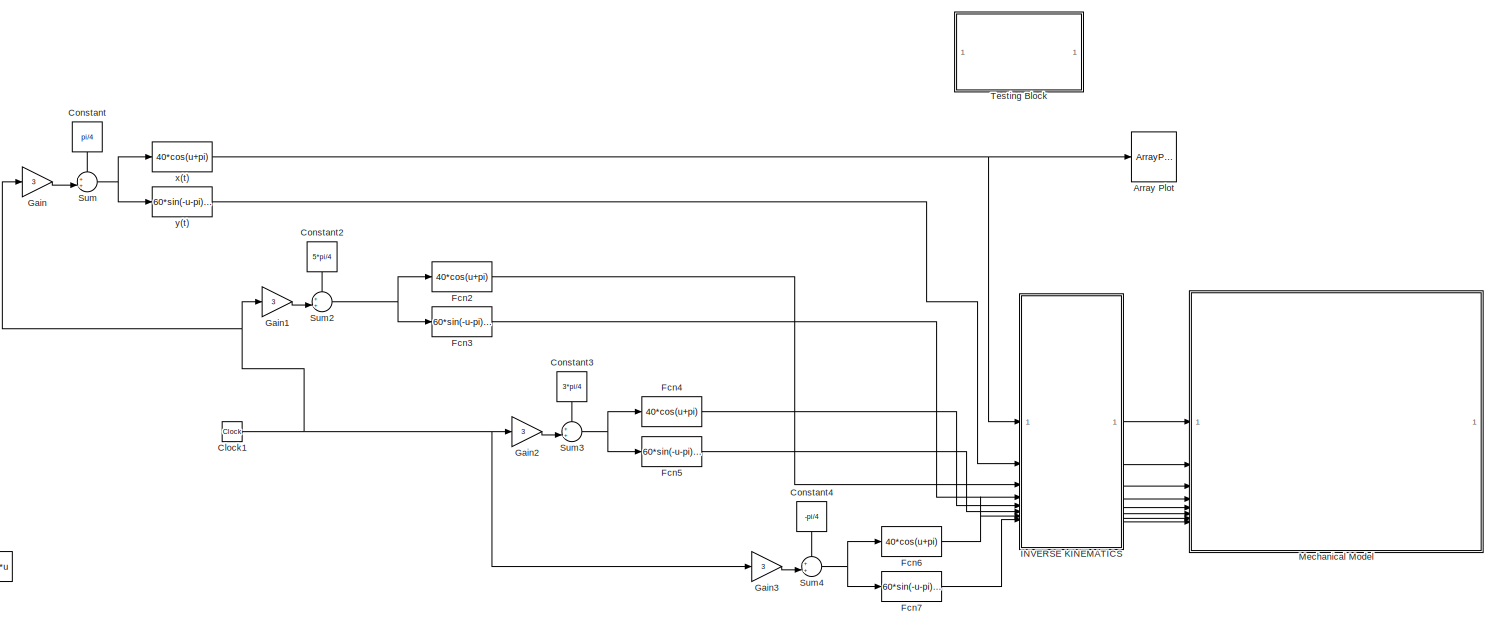
[diagram: root canvas - part 1/2, most of the canvas]
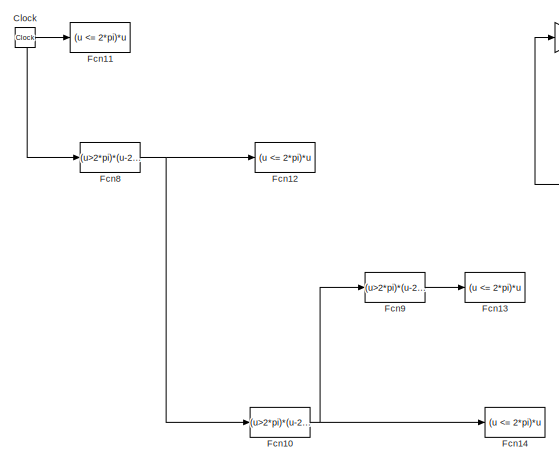
[diagram: root canvas - part 2/2, middle left region]
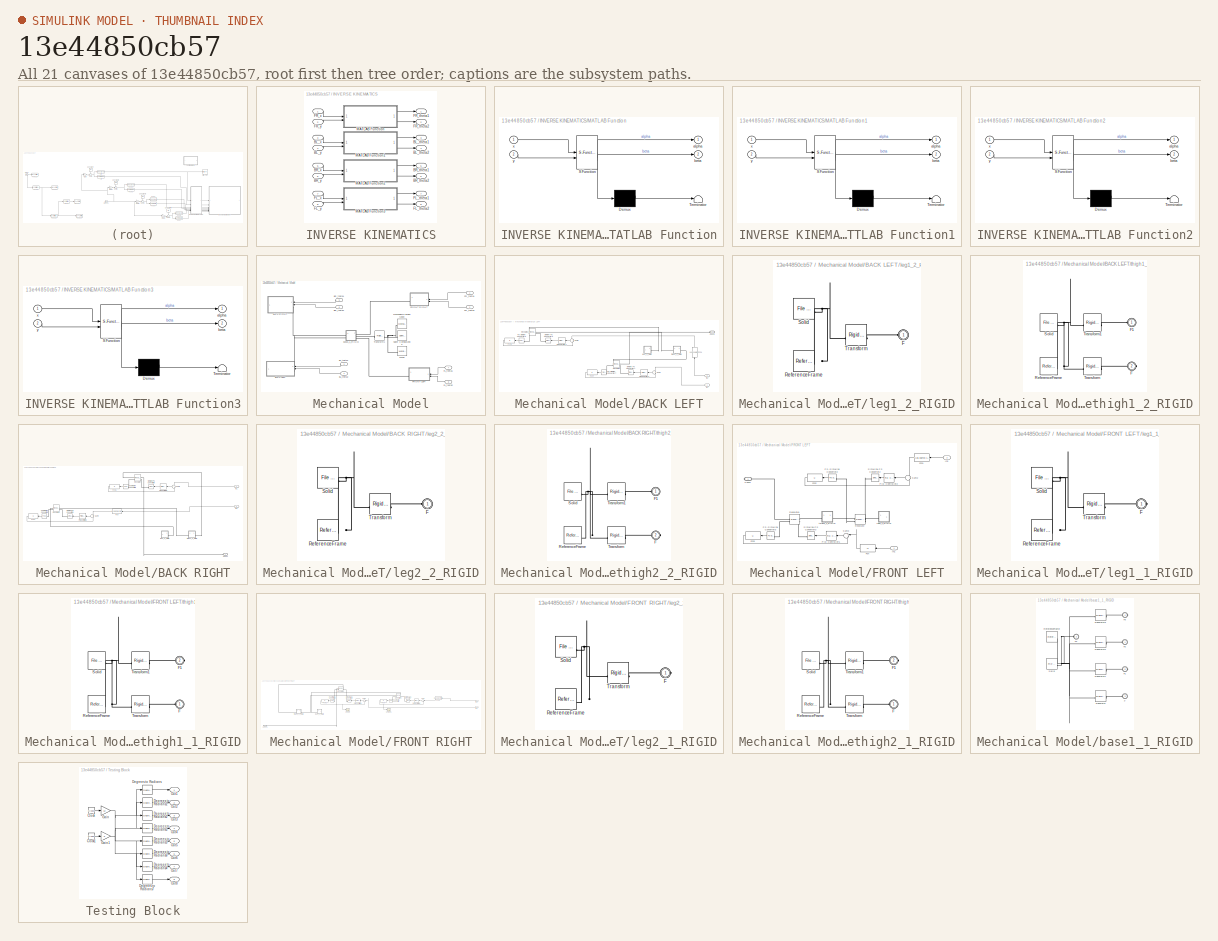
[diagram: thumbnail index - all 21 canvases of the model, root first then tree order]
MODEL slx_13e44850cb57
KIND model
CONFIG AbsTol = auto
CONFIG EnableMultiTasking = off
CONFIG FixedStep = auto
CONFIG MaxStep = auto
CONFIG MinStep = auto
CONFIG RelTol = 1e-3
CONFIG SampleTimeConstraint = Unconstrained
CONFIG SolverName = VariableStepAuto
CONFIG StartTime = 0.0
CONFIG StopTime = 10
WORKSPACE source: external: MATLAB File  (data not in archive)
BLOCK [ArrayPlot] Array Plot
  AxesScaling = Manual
  ChannelNames = [""]
  DefaultConfigurationName = dsp.scopes.ArrayPlotBlockSpecification
  GraphicalSettings = {"Style":{"BackgroundColor":[0.12941176470588237,0.12941176470588237,0.12941176470588237],"AxesColor":[0,0,0],"LabelsColor":[0.68627450980392157,0.68627450980392157,0.68627450980392157],"PreserveColors":false,"Visible":true,"LineStyle":["-"],"LineWidth":1.5,"BarWidth":0.9,"LineColor":[1,0.90980392156862744,0.39215686274509803],"LineFaceAlpha":1,"LineEdgeAlpha":1,"Marker":["o"],"FontSize":8.5},"Mea...<+19ch>
  MultipleDisplayCache = {"PlotAsMagnitudePhase":[false],"ShowGrid":[false],"ShowLegend":[false],"Title":[""],"XLabel":[""],"YLabel":["Amplitude"],"YLimits":["[-9.45414847161572,10.54585152838428]"]}
  ScopeFrameLocation = window
  ScopeSpecificationString = dsp.scopes.ArrayPlotBlockSpecification('CurrentConfiguration', extmgr.ConfigurationSet(extmgr.Configuration('Core','General UI',true),extmgr.Configuration('Core','Source UI',true),extmgr.Configuration('Sources','WiredSimulink',true),extmgr.Configuration('Visuals','Array Plot',true,'DisplayPropertyDefaults',struct('MinYLimReal','-10','MaxYLimReal','10','YLabelReal','Amplitude','MinYLimMag','0','Max...<+1371ch>
  ShowGrid = off
  WasSavedAsWebScope = on
  WindowPosition = [278.000000,154.000000,810.000000,455.000000,]
  YLimits = [-9.45414847161572 10.54585152838428]
BLOCK [Clock] Clock
  Commented = on
BLOCK [Clock] Clock1
BLOCK [Constant] Constant
  NameLocation = left
  Value = pi/4
BLOCK [Constant] Constant2
  NameLocation = left
  Value = 5*pi/4
BLOCK [Constant] Constant3
  NameLocation = left
  Value = 3*pi/4
BLOCK [Constant] Constant4
  NameLocation = left
  Value = -pi/4
BLOCK [Fcn] Fcn10
  Commented = on
  Expr = (u>2*pi)*(u-2*pi)
BLOCK [Fcn] Fcn11
  Commented = on
  Expr = (u <= 2*pi)*u
BLOCK [Fcn] Fcn12
  Commented = on
  Expr = (u <= 2*pi)*u
BLOCK [Fcn] Fcn13
  Commented = on
  Expr = (u <= 2*pi)*u
BLOCK [Fcn] Fcn14
  Commented = on
  Expr = (u <= 2*pi)*u
BLOCK [Fcn] Fcn2
  Expr = 40*cos(u+pi)
BLOCK [Fcn] Fcn3
  Expr = 60*sin(-u-pi)/2 - 180
BLOCK [Fcn] Fcn4
  Expr = 40*cos(u+pi)
BLOCK [Fcn] Fcn5
  Expr = 60*sin(-u-pi)/2 - 180
BLOCK [Fcn] Fcn6
  Expr = 40*cos(u+pi)
BLOCK [Fcn] Fcn7
  Expr = 60*sin(-u-pi)/2 - 180
BLOCK [Fcn] Fcn8
  Commented = on
  Expr = (u>2*pi)*(u-2*pi)
BLOCK [Fcn] Fcn9
  Commented = on
  Expr = (u>2*pi)*(u-2*pi)
BLOCK [Gain] Gain
  Gain = 3
BLOCK [Gain] Gain1
  Gain = 3
BLOCK [Gain] Gain2
  Gain = 3
BLOCK [Gain] Gain3
  Gain = 3
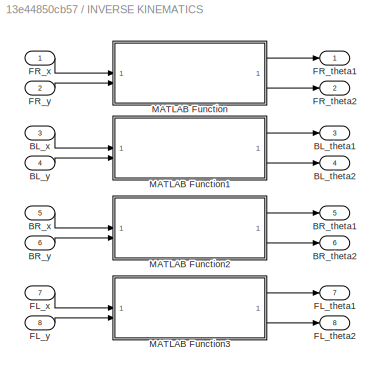
BLOCK [SubSystem] INVERSE KINEMATICS
BLOCK [Outport] INVERSE KINEMATICS/BL_theta1
  Port = 3
  VectorParamsAs1DForOutWhenUnconnected = off
BLOCK [Outport] INVERSE KINEMATICS/BL_theta2
  Port = 4
  VectorParamsAs1DForOutWhenUnconnected = off
BLOCK [Inport] INVERSE KINEMATICS/BL_x
  Port = 3
BLOCK [Inport] INVERSE KINEMATICS/BL_y
  Port = 4
BLOCK [Outport] INVERSE KINEMATICS/BR_theta1
  Port = 5
  VectorParamsAs1DForOutWhenUnconnected = off
BLOCK [Outport] INVERSE KINEMATICS/BR_theta2
  Port = 6
  VectorParamsAs1DForOutWhenUnconnected = off
BLOCK [Inport] INVERSE KINEMATICS/BR_x
  Port = 5
BLOCK [Inport] INVERSE KINEMATICS/BR_y
  Port = 6
BLOCK [Outport] INVERSE KINEMATICS/FL_theta1
  Port = 7
  VectorParamsAs1DForOutWhenUnconnected = off
BLOCK [Outport] INVERSE KINEMATICS/FL_theta2
  Port = 8
  VectorParamsAs1DForOutWhenUnconnected = off
BLOCK [Inport] INVERSE KINEMATICS/FL_x
  Port = 7
BLOCK [Inport] INVERSE KINEMATICS/FL_y
  Port = 8
BLOCK [Outport] INVERSE KINEMATICS/FR_theta1
  VectorParamsAs1DForOutWhenUnconnected = off
BLOCK [Outport] INVERSE KINEMATICS/FR_theta2
  Port = 2
  VectorParamsAs1DForOutWhenUnconnected = off
BLOCK [Inport] INVERSE KINEMATICS/FR_x
BLOCK [Inport] INVERSE KINEMATICS/FR_y
  Port = 2
BLOCK [SubSystem] INVERSE KINEMATICS/MATLAB Function
  ErrorFcn = Stateflow.Translate.translate
  PermitHierarchicalResolution = ExplicitOnly
  SFBlockType = MATLAB Function
  TreatAsAtomicUnit = on
BLOCK [Demux] INVERSE KINEMATICS/MATLAB Function/ Demux 
  Outputs = 1
BLOCK [S-Function] INVERSE KINEMATICS/MATLAB Function/ SFunction 
  EnableBusSupport = off
  FunctionName = sf_sfun
  PortCounts = [2 3]
  SFcnIsStateOwnerBlock = off
  SFunctionDeploymentMode = off
  Tag = Stateflow S-Function 2
BLOCK [Terminator] INVERSE KINEMATICS/MATLAB Function/ Terminator 
BLOCK [Outport] INVERSE KINEMATICS/MATLAB Function/alpha
  VectorParamsAs1DForOutWhenUnconnected = off
BLOCK [Outport] INVERSE KINEMATICS/MATLAB Function/beta
  Port = 2
  VectorParamsAs1DForOutWhenUnconnected = off
BLOCK [Inport] INVERSE KINEMATICS/MATLAB Function/x
BLOCK [Inport] INVERSE KINEMATICS/MATLAB Function/y
  Port = 2
BLOCK [SubSystem] INVERSE KINEMATICS/MATLAB Function1
  ErrorFcn = Stateflow.Translate.translate
  PermitHierarchicalResolution = ExplicitOnly
  SFBlockType = MATLAB Function
  TreatAsAtomicUnit = on
BLOCK [Demux] INVERSE KINEMATICS/MATLAB Function1/ Demux 
  Outputs = 1
BLOCK [S-Function] INVERSE KINEMATICS/MATLAB Function1/ SFunction 
  EnableBusSupport = off
  FunctionName = sf_sfun
  PortCounts = [2 3]
  SFcnIsStateOwnerBlock = off
  SFunctionDeploymentMode = off
  Tag = Stateflow S-Function 1
BLOCK [Terminator] INVERSE KINEMATICS/MATLAB Function1/ Terminator 
BLOCK [Outport] INVERSE KINEMATICS/MATLAB Function1/alpha
  VectorParamsAs1DForOutWhenUnconnected = off
BLOCK [Outport] INVERSE KINEMATICS/MATLAB Function1/beta
  Port = 2
  VectorParamsAs1DForOutWhenUnconnected = off
BLOCK [Inport] INVERSE KINEMATICS/MATLAB Function1/x
BLOCK [Inport] INVERSE KINEMATICS/MATLAB Function1/y
  Port = 2
BLOCK [SubSystem] INVERSE KINEMATICS/MATLAB Function2
  ErrorFcn = Stateflow.Translate.translate
  PermitHierarchicalResolution = ExplicitOnly
  SFBlockType = MATLAB Function
  TreatAsAtomicUnit = on
BLOCK [Demux] INVERSE KINEMATICS/MATLAB Function2/ Demux 
  Outputs = 1
BLOCK [S-Function] INVERSE KINEMATICS/MATLAB Function2/ SFunction 
  EnableBusSupport = off
  FunctionName = sf_sfun
  PortCounts = [2 3]
  SFcnIsStateOwnerBlock = off
  SFunctionDeploymentMode = off
  Tag = Stateflow S-Function 3
BLOCK [Terminator] INVERSE KINEMATICS/MATLAB Function2/ Terminator 
BLOCK [Outport] INVERSE KINEMATICS/MATLAB Function2/alpha
  VectorParamsAs1DForOutWhenUnconnected = off
BLOCK [Outport] INVERSE KINEMATICS/MATLAB Function2/beta
  Port = 2
  VectorParamsAs1DForOutWhenUnconnected = off
BLOCK [Inport] INVERSE KINEMATICS/MATLAB Function2/x
BLOCK [Inport] INVERSE KINEMATICS/MATLAB Function2/y
  Port = 2
BLOCK [SubSystem] INVERSE KINEMATICS/MATLAB Function3
  ErrorFcn = Stateflow.Translate.translate
  PermitHierarchicalResolution = ExplicitOnly
  SFBlockType = MATLAB Function
  TreatAsAtomicUnit = on
BLOCK [Demux] INVERSE KINEMATICS/MATLAB Function3/ Demux 
  Outputs = 1
BLOCK [S-Function] INVERSE KINEMATICS/MATLAB Function3/ SFunction 
  EnableBusSupport = off
  FunctionName = sf_sfun
  PortCounts = [2 3]
  SFcnIsStateOwnerBlock = off
  SFunctionDeploymentMode = off
  Tag = Stateflow S-Function 4
BLOCK [Terminator] INVERSE KINEMATICS/MATLAB Function3/ Terminator 
BLOCK [Outport] INVERSE KINEMATICS/MATLAB Function3/alpha
  VectorParamsAs1DForOutWhenUnconnected = off
BLOCK [Outport] INVERSE KINEMATICS/MATLAB Function3/beta
  Port = 2
  VectorParamsAs1DForOutWhenUnconnected = off
BLOCK [Inport] INVERSE KINEMATICS/MATLAB Function3/x
BLOCK [Inport] INVERSE KINEMATICS/MATLAB Function3/y
  Port = 2
BLOCK [SubSystem] Mechanical Model
BLOCK [SubSystem] Mechanical Model/BACK LEFT
  NameLocation = top
BLOCK [PMIOPort] Mechanical Model/BACK LEFT/Conn1
  Side = Left
BLOCK [Fcn] Mechanical Model/BACK LEFT/Fcn1
  Expr = u-28.338*pi/180
  NameLocation = left
BLOCK [Fcn] Mechanical Model/BACK LEFT/Fcn6
  Expr = u
  NameLocation = top
BLOCK [Fcn] Mechanical Model/BACK LEFT/Fcn7
  Expr = u
  NameLocation = top
BLOCK [Inport] Mechanical Model/BACK LEFT/In1
BLOCK [Inport] Mechanical Model/BACK LEFT/In2 
  Port = 2
BLOCK [Reference] Mechanical Model/BACK LEFT/PID Controller1  REF=slpidlib/PID Controller
  NameLocation = top
  SourceBlock = slpidlib/PID Controller
  SourceType = PID 1dof
BLOCK [Reference] Mechanical Model/BACK LEFT/PID Controller2  REF=slpidlib/PID Controller
  NameLocation = top
  SourceBlock = slpidlib/PID Controller
  SourceType = PID 1dof
BLOCK [Reference] Mechanical Model/BACK LEFT/PS-Simulink Converter6  REF=nesl_utility/PS-Simulink
Converter
  NameLocation = top
  SourceBlock = nesl_utility/PS-Simulink\nConverter
  SourceType = PS-Simulink\nConverter
BLOCK [Reference] Mechanical Model/BACK LEFT/PS-Simulink Converter7  REF=nesl_utility/PS-Simulink
Converter
  NameLocation = top
  SourceBlock = nesl_utility/PS-Simulink\nConverter
  SourceType = PS-Simulink\nConverter
BLOCK [Reference] Mechanical Model/BACK LEFT/Revolute2  REF=sm_lib/Joints/Revolute Joint
  NameLocation = top
  SourceBlock = sm_lib/Joints/Revolute Joint
  SourceType = Revolute Joint
BLOCK [Reference] Mechanical Model/BACK LEFT/Revolute3  REF=sm_lib/Joints/Revolute Joint
  NameLocation = top
  SourceBlock = sm_lib/Joints/Revolute Joint
  SourceType = Revolute Joint
BLOCK [Reference] Mechanical Model/BACK LEFT/Simulink-PS Converter6  REF=nesl_utility/Simulink-PS
Converter
  NameLocation = top
  SourceBlock = nesl_utility/Simulink-PS\nConverter
  SourceType = Simulink-PS\nConverter
BLOCK [Reference] Mechanical Model/BACK LEFT/Simulink-PS Converter7  REF=nesl_utility/Simulink-PS
Converter
  NameLocation = top
  SourceBlock = nesl_utility/Simulink-PS\nConverter
  SourceType = Simulink-PS\nConverter
BLOCK [Sum] Mechanical Model/BACK LEFT/Sum6
  Inputs = +-
  NameLocation = top
BLOCK [Sum] Mechanical Model/BACK LEFT/Sum7
  Inputs = +-
  NameLocation = top
BLOCK [SubSystem] Mechanical Model/BACK LEFT/leg1_2_RIGID
  NameLocation = top
BLOCK [PMIOPort] Mechanical Model/BACK LEFT/leg1_2_RIGID/F
  Side = Left
BLOCK [Reference] Mechanical Model/BACK LEFT/leg1_2_RIGID/ReferenceFrame  REF=sm_lib/Frames and
Transforms/Reference
Frame
  SourceBlock = sm_lib/Frames and\nTransforms/Reference\nFrame
  SourceType = Reference\nFrame
BLOCK [Reference] Mechanical Model/BACK LEFT/leg1_2_RIGID/Solid  REF=sm_lib/Body Elements/File Solid
  SourceBlock = sm_lib/Body Elements/File Solid
  SourceType = File Solid
BLOCK [Reference] Mechanical Model/BACK LEFT/leg1_2_RIGID/Transform  REF=sm_lib/Frames and
Transforms/Rigid
Transform
  SourceBlock = sm_lib/Frames and\nTransforms/Rigid\nTransform
  SourceType = Rigid\nTransform
BLOCK [SubSystem] Mechanical Model/BACK LEFT/thigh1_2_RIGID
  NameLocation = top
BLOCK [PMIOPort] Mechanical Model/BACK LEFT/thigh1_2_RIGID/F
  Port = 2
  Side = Right
BLOCK [PMIOPort] Mechanical Model/BACK LEFT/thigh1_2_RIGID/F1
  Side = Left
BLOCK [Reference] Mechanical Model/BACK LEFT/thigh1_2_RIGID/ReferenceFrame  REF=sm_lib/Frames and
Transforms/Reference
Frame
  SourceBlock = sm_lib/Frames and\nTransforms/Reference\nFrame
  SourceType = Reference\nFrame
BLOCK [Reference] Mechanical Model/BACK LEFT/thigh1_2_RIGID/Solid  REF=sm_lib/Body Elements/File Solid
  SourceBlock = sm_lib/Body Elements/File Solid
  SourceType = File Solid
BLOCK [Reference] Mechanical Model/BACK LEFT/thigh1_2_RIGID/Transform  REF=sm_lib/Frames and
Transforms/Rigid
Transform
  SourceBlock = sm_lib/Frames and\nTransforms/Rigid\nTransform
  SourceType = Rigid\nTransform
BLOCK [Reference] Mechanical Model/BACK LEFT/thigh1_2_RIGID/Transform1  REF=sm_lib/Frames and
Transforms/Rigid
Transform
  SourceBlock = sm_lib/Frames and\nTransforms/Rigid\nTransform
  SourceType = Rigid\nTransform
BLOCK [SubSystem] Mechanical Model/BACK RIGHT
  NameLocation = top
BLOCK [PMIOPort] Mechanical Model/BACK RIGHT/Conn1
  Side = Left
BLOCK [Fcn] Mechanical Model/BACK RIGHT/Fcn
  Expr = -u+28.338*pi/180
BLOCK [Fcn] Mechanical Model/BACK RIGHT/Fcn4
  Expr = u
  NameLocation = top
BLOCK [Fcn] Mechanical Model/BACK RIGHT/Fcn5
  Expr = u
  NameLocation = top
BLOCK [Inport] Mechanical Model/BACK RIGHT/In1
BLOCK [Inport] Mechanical Model/BACK RIGHT/In2
  Port = 2
BLOCK [Reference] Mechanical Model/BACK RIGHT/PID Controller1  REF=slpidlib/PID Controller
  NameLocation = top
  SourceBlock = slpidlib/PID Controller
  SourceType = PID 1dof
BLOCK [Reference] Mechanical Model/BACK RIGHT/PID Controller2  REF=slpidlib/PID Controller
  NameLocation = top
  SourceBlock = slpidlib/PID Controller
  SourceType = PID 1dof
BLOCK [Reference] Mechanical Model/BACK RIGHT/PS-Simulink Converter4  REF=nesl_utility/PS-Simulink
Converter
  NameLocation = top
  SourceBlock = nesl_utility/PS-Simulink\nConverter
  SourceType = PS-Simulink\nConverter
BLOCK [Reference] Mechanical Model/BACK RIGHT/PS-Simulink Converter5  REF=nesl_utility/PS-Simulink
Converter
  NameLocation = top
  SourceBlock = nesl_utility/PS-Simulink\nConverter
  SourceType = PS-Simulink\nConverter
BLOCK [Reference] Mechanical Model/BACK RIGHT/Revolute6  REF=sm_lib/Joints/Revolute Joint
  NameLocation = top
  SourceBlock = sm_lib/Joints/Revolute Joint
  SourceType = Revolute Joint
BLOCK [Reference] Mechanical Model/BACK RIGHT/Revolute7  REF=sm_lib/Joints/Revolute Joint
  NameLocation = top
  SourceBlock = sm_lib/Joints/Revolute Joint
  SourceType = Revolute Joint
BLOCK [Reference] Mechanical Model/BACK RIGHT/Simulink-PS Converter4  REF=nesl_utility/Simulink-PS
Converter
  NameLocation = top
  SourceBlock = nesl_utility/Simulink-PS\nConverter
  SourceType = Simulink-PS\nConverter
BLOCK [Reference] Mechanical Model/BACK RIGHT/Simulink-PS Converter5  REF=nesl_utility/Simulink-PS
Converter
  NameLocation = top
  SourceBlock = nesl_utility/Simulink-PS\nConverter
  SourceType = Simulink-PS\nConverter
BLOCK [Sum] Mechanical Model/BACK RIGHT/Sum4
  Inputs = +-
  NameLocation = top
BLOCK [Sum] Mechanical Model/BACK RIGHT/Sum5
  Inputs = +-
  NameLocation = top
BLOCK [SubSystem] Mechanical Model/BACK RIGHT/leg2_2_RIGID
  NameLocation = top
BLOCK [PMIOPort] Mechanical Model/BACK RIGHT/leg2_2_RIGID/F
  Side = Left
BLOCK [Reference] Mechanical Model/BACK RIGHT/leg2_2_RIGID/ReferenceFrame  REF=sm_lib/Frames and
Transforms/Reference
Frame
  SourceBlock = sm_lib/Frames and\nTransforms/Reference\nFrame
  SourceType = Reference\nFrame
BLOCK [Reference] Mechanical Model/BACK RIGHT/leg2_2_RIGID/Solid  REF=sm_lib/Body Elements/File Solid
  SourceBlock = sm_lib/Body Elements/File Solid
  SourceType = File Solid
BLOCK [Reference] Mechanical Model/BACK RIGHT/leg2_2_RIGID/Transform  REF=sm_lib/Frames and
Transforms/Rigid
Transform
  SourceBlock = sm_lib/Frames and\nTransforms/Rigid\nTransform
  SourceType = Rigid\nTransform
BLOCK [SubSystem] Mechanical Model/BACK RIGHT/thigh2_2_RIGID
  NameLocation = top
BLOCK [PMIOPort] Mechanical Model/BACK RIGHT/thigh2_2_RIGID/F
  Port = 2
  Side = Right
BLOCK [PMIOPort] Mechanical Model/BACK RIGHT/thigh2_2_RIGID/F1
  Side = Left
BLOCK [Reference] Mechanical Model/BACK RIGHT/thigh2_2_RIGID/ReferenceFrame  REF=sm_lib/Frames and
Transforms/Reference
Frame
  SourceBlock = sm_lib/Frames and\nTransforms/Reference\nFrame
  SourceType = Reference\nFrame
BLOCK [Reference] Mechanical Model/BACK RIGHT/thigh2_2_RIGID/Solid  REF=sm_lib/Body Elements/File Solid
  SourceBlock = sm_lib/Body Elements/File Solid
  SourceType = File Solid
BLOCK [Reference] Mechanical Model/BACK RIGHT/thigh2_2_RIGID/Transform  REF=sm_lib/Frames and
Transforms/Rigid
Transform
  SourceBlock = sm_lib/Frames and\nTransforms/Rigid\nTransform
  SourceType = Rigid\nTransform
BLOCK [Reference] Mechanical Model/BACK RIGHT/thigh2_2_RIGID/Transform1  REF=sm_lib/Frames and
Transforms/Rigid
Transform
  SourceBlock = sm_lib/Frames and\nTransforms/Rigid\nTransform
  SourceType = Rigid\nTransform
BLOCK [Inport] Mechanical Model/BL_theta1
  NameLocation = top
  Port = 3
BLOCK [Inport] Mechanical Model/BL_theta2
  NameLocation = top
  Port = 4
BLOCK [Inport] Mechanical Model/BR_theta1
  NameLocation = top
  Port = 5
BLOCK [Inport] Mechanical Model/BR_theta2
  NameLocation = top
  Port = 6
BLOCK [Inport] Mechanical Model/FL_theta1
  NameLocation = top
  Port = 7
BLOCK [Inport] Mechanical Model/FL_theta2
  NameLocation = top
  Port = 8
BLOCK [SubSystem] Mechanical Model/FRONT LEFT
  NameLocation = top
BLOCK [PMIOPort] Mechanical Model/FRONT LEFT/Conn1
  Side = Right
BLOCK [Fcn] Mechanical Model/FRONT LEFT/Fcn
  Expr = -u
BLOCK [Fcn] Mechanical Model/FRONT LEFT/Fcn1
  Expr = u-28.338*pi/180
BLOCK [Fcn] Mechanical Model/FRONT LEFT/Fcn2
  Expr = u
  NameLocation = top
BLOCK [Fcn] Mechanical Model/FRONT LEFT/Fcn3
  Expr = u
  NameLocation = top
BLOCK [Inport] Mechanical Model/FRONT LEFT/In1 
BLOCK [Inport] Mechanical Model/FRONT LEFT/In2
  Port = 2
BLOCK [Reference] Mechanical Model/FRONT LEFT/PID Controller1  REF=slpidlib/PID Controller
  NameLocation = top
  SourceBlock = slpidlib/PID Controller
  SourceType = PID 1dof
BLOCK [Reference] Mechanical Model/FRONT LEFT/PID Controller2  REF=slpidlib/PID Controller
  NameLocation = top
  SourceBlock = slpidlib/PID Controller
  SourceType = PID 1dof
BLOCK [Reference] Mechanical Model/FRONT LEFT/PS-Simulink Converter2  REF=nesl_utility/PS-Simulink
Converter
  NameLocation = top
  SourceBlock = nesl_utility/PS-Simulink\nConverter
  SourceType = PS-Simulink\nConverter
BLOCK [Reference] Mechanical Model/FRONT LEFT/PS-Simulink Converter3  REF=nesl_utility/PS-Simulink
Converter
  NameLocation = top
  SourceBlock = nesl_utility/PS-Simulink\nConverter
  SourceType = PS-Simulink\nConverter
BLOCK [Reference] Mechanical Model/FRONT LEFT/Revolute  REF=sm_lib/Joints/Revolute Joint
  NameLocation = top
  SourceBlock = sm_lib/Joints/Revolute Joint
  SourceType = Revolute Joint
BLOCK [Reference] Mechanical Model/FRONT LEFT/Revolute1  REF=sm_lib/Joints/Revolute Joint
  NameLocation = top
  SourceBlock = sm_lib/Joints/Revolute Joint
  SourceType = Revolute Joint
BLOCK [Reference] Mechanical Model/FRONT LEFT/Simulink-PS Converter2  REF=nesl_utility/Simulink-PS
Converter
  NameLocation = top
  SourceBlock = nesl_utility/Simulink-PS\nConverter
  SourceType = Simulink-PS\nConverter
BLOCK [Reference] Mechanical Model/FRONT LEFT/Simulink-PS Converter3  REF=nesl_utility/Simulink-PS
Converter
  NameLocation = top
  SourceBlock = nesl_utility/Simulink-PS\nConverter
  SourceType = Simulink-PS\nConverter
BLOCK [Sum] Mechanical Model/FRONT LEFT/Sum2
  Inputs = +-
  NameLocation = top
BLOCK [Sum] Mechanical Model/FRONT LEFT/Sum3
  Inputs = +-
  NameLocation = top
BLOCK [SubSystem] Mechanical Model/FRONT LEFT/leg1_1_RIGID
  NameLocation = top
BLOCK [PMIOPort] Mechanical Model/FRONT LEFT/leg1_1_RIGID/F
  Side = Right
BLOCK [Reference] Mechanical Model/FRONT LEFT/leg1_1_RIGID/ReferenceFrame  REF=sm_lib/Frames and
Transforms/Reference
Frame
  SourceBlock = sm_lib/Frames and\nTransforms/Reference\nFrame
  SourceType = Reference\nFrame
BLOCK [Reference] Mechanical Model/FRONT LEFT/leg1_1_RIGID/Solid  REF=sm_lib/Body Elements/File Solid
  SourceBlock = sm_lib/Body Elements/File Solid
  SourceType = File Solid
BLOCK [Reference] Mechanical Model/FRONT LEFT/leg1_1_RIGID/Transform  REF=sm_lib/Frames and
Transforms/Rigid
Transform
  SourceBlock = sm_lib/Frames and\nTransforms/Rigid\nTransform
  SourceType = Rigid\nTransform
BLOCK [SubSystem] Mechanical Model/FRONT LEFT/thigh1_1_RIGID
  NameLocation = top
BLOCK [PMIOPort] Mechanical Model/FRONT LEFT/thigh1_1_RIGID/F
  Side = Left
BLOCK [PMIOPort] Mechanical Model/FRONT LEFT/thigh1_1_RIGID/F1
  Port = 2
  Side = Right
BLOCK [Reference] Mechanical Model/FRONT LEFT/thigh1_1_RIGID/ReferenceFrame  REF=sm_lib/Frames and
Transforms/Reference
Frame
  SourceBlock = sm_lib/Frames and\nTransforms/Reference\nFrame
  SourceType = Reference\nFrame
BLOCK [Reference] Mechanical Model/FRONT LEFT/thigh1_1_RIGID/Solid  REF=sm_lib/Body Elements/File Solid
  SourceBlock = sm_lib/Body Elements/File Solid
  SourceType = File Solid
BLOCK [Reference] Mechanical Model/FRONT LEFT/thigh1_1_RIGID/Transform  REF=sm_lib/Frames and
Transforms/Rigid
Transform
  SourceBlock = sm_lib/Frames and\nTransforms/Rigid\nTransform
  SourceType = Rigid\nTransform
BLOCK [Reference] Mechanical Model/FRONT LEFT/thigh1_1_RIGID/Transform1  REF=sm_lib/Frames and
Transforms/Rigid
Transform
  SourceBlock = sm_lib/Frames and\nTransforms/Rigid\nTransform
  SourceType = Rigid\nTransform
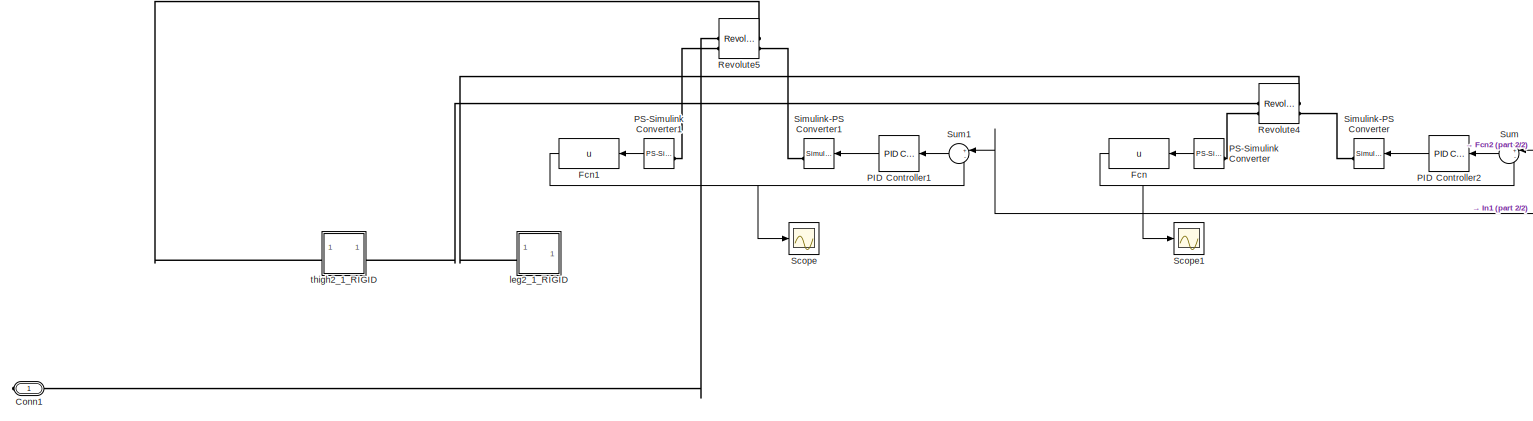
[diagram: Mechanical Model/FRONT RIGHT - part 1/2, most of the canvas]
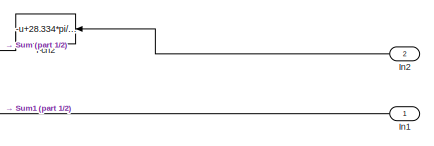
[diagram: Mechanical Model/FRONT RIGHT - part 2/2, middle right region]
BLOCK [SubSystem] Mechanical Model/FRONT RIGHT
  NameLocation = top
BLOCK [PMIOPort] Mechanical Model/FRONT RIGHT/Conn1
  Side = Right
BLOCK [Fcn] Mechanical Model/FRONT RIGHT/Fcn
  Expr = u
  NameLocation = top
BLOCK [Fcn] Mechanical Model/FRONT RIGHT/Fcn1
  Expr = u
  NameLocation = top
BLOCK [Fcn] Mechanical Model/FRONT RIGHT/Fcn2
  Expr = -u+28.334*pi/180
BLOCK [Inport] Mechanical Model/FRONT RIGHT/In1
BLOCK [Inport] Mechanical Model/FRONT RIGHT/In2 
  Port = 2
BLOCK [Reference] Mechanical Model/FRONT RIGHT/PID Controller1  REF=slpidlib/PID Controller
  NameLocation = top
  SourceBlock = slpidlib/PID Controller
  SourceType = PID 1dof
BLOCK [Reference] Mechanical Model/FRONT RIGHT/PID Controller2  REF=slpidlib/PID Controller
  NameLocation = top
  SourceBlock = slpidlib/PID Controller
  SourceType = PID 1dof
BLOCK [Reference] Mechanical Model/FRONT RIGHT/PS-Simulink Converter  REF=nesl_utility/PS-Simulink
Converter
  NameLocation = top
  SourceBlock = nesl_utility/PS-Simulink\nConverter
  SourceType = PS-Simulink\nConverter
BLOCK [Reference] Mechanical Model/FRONT RIGHT/PS-Simulink Converter1  REF=nesl_utility/PS-Simulink
Converter
  NameLocation = top
  SourceBlock = nesl_utility/PS-Simulink\nConverter
  SourceType = PS-Simulink\nConverter
BLOCK [Reference] Mechanical Model/FRONT RIGHT/Revolute4  REF=sm_lib/Joints/Revolute Joint
  NameLocation = top
  SourceBlock = sm_lib/Joints/Revolute Joint
  SourceType = Revolute Joint
BLOCK [Reference] Mechanical Model/FRONT RIGHT/Revolute5  REF=sm_lib/Joints/Revolute Joint
  NameLocation = top
  SourceBlock = sm_lib/Joints/Revolute Joint
  SourceType = Revolute Joint
BLOCK [Scope] Mechanical Model/FRONT RIGHT/Scope
  ActiveDisplayYMaximum = 0.15571
  ActiveDisplayYMinimum = -0.53801
  Floating = off
  GraphicalSettings = {"GraphicalSettings":{"LegacySettings":true,"Style":{"AxesScalingProperties":{"ScaleAxesLimitsAtStop":false},"Style":{"AxesColor":"[0 0 0]","ChannelNames":[""],"ColorOrder":"[1 1 0.0666666666666667;0.0745098039215686 0.623529411764706 1;1 0.411764705882353 0.16078431372549;0.392156862745098 0.831372549019608 0.0745098039215686;0.717647058823529 0.274509803921569 1;0.0588235294117647 1 1;1 0.074509...<+399ch>
  MultipleDisplayCache = [{"MaxYLimMag":0.53801,"MaxYLimReal":0.15571,"MinYLimMag":0,"MinYLimReal":-0.53801,"PlotAsMagnitudePhase":false,"ShowGrid":true,"ShowLegend":false,"Title":"%<SignalLabel>","YLabel":""}]
  NumInputPorts = 1
  WasSavedAsWebScope = on
  WindowPosition = [114 22 580 400]
BLOCK [Scope] Mechanical Model/FRONT RIGHT/Scope1
  ActiveDisplayYMaximum = 2.02904
  ActiveDisplayYMinimum = -0.74542
  DataLoggingVariableName = ScopeData1
  Floating = off
  GraphicalSettings = {"GraphicalSettings":{"LegacySettings":true,"Style":{"AxesScalingProperties":{"ScaleAxesLimitsAtStop":false},"Style":{"AxesColor":"[0 0 0]","ChannelNames":[""],"ColorOrder":"[1 1 0.0666666666666667;0.0745098039215686 0.623529411764706 1;1 0.411764705882353 0.16078431372549;0.392156862745098 0.831372549019608 0.0745098039215686;0.717647058823529 0.274509803921569 1;0.0588235294117647 1 1;1 0.074509...<+399ch>
  MultipleDisplayCache = [{"MaxYLimMag":2.02904,"MaxYLimReal":2.02904,"MinYLimMag":0,"MinYLimReal":-0.74542,"PlotAsMagnitudePhase":false,"ShowGrid":true,"ShowLegend":false,"Title":"%<SignalLabel>","YLabel":""}]
  NumInputPorts = 1
  WasSavedAsWebScope = on
  WindowPosition = [109 17 590 390]
BLOCK [Reference] Mechanical Model/FRONT RIGHT/Simulink-PS Converter  REF=nesl_utility/Simulink-PS
Converter
  NameLocation = top
  SourceBlock = nesl_utility/Simulink-PS\nConverter
  SourceType = Simulink-PS\nConverter
BLOCK [Reference] Mechanical Model/FRONT RIGHT/Simulink-PS Converter1  REF=nesl_utility/Simulink-PS
Converter
  NameLocation = top
  SourceBlock = nesl_utility/Simulink-PS\nConverter
  SourceType = Simulink-PS\nConverter
BLOCK [Sum] Mechanical Model/FRONT RIGHT/Sum
  Inputs = +-
  NameLocation = top
BLOCK [Sum] Mechanical Model/FRONT RIGHT/Sum1
  Inputs = +-
  NameLocation = top
BLOCK [SubSystem] Mechanical Model/FRONT RIGHT/leg2_1_RIGID
  NameLocation = top
BLOCK [PMIOPort] Mechanical Model/FRONT RIGHT/leg2_1_RIGID/F
  Side = Right
BLOCK [Reference] Mechanical Model/FRONT RIGHT/leg2_1_RIGID/ReferenceFrame  REF=sm_lib/Frames and
Transforms/Reference
Frame
  SourceBlock = sm_lib/Frames and\nTransforms/Reference\nFrame
  SourceType = Reference\nFrame
BLOCK [Reference] Mechanical Model/FRONT RIGHT/leg2_1_RIGID/Solid  REF=sm_lib/Body Elements/File Solid
  SourceBlock = sm_lib/Body Elements/File Solid
  SourceType = File Solid
BLOCK [Reference] Mechanical Model/FRONT RIGHT/leg2_1_RIGID/Transform  REF=sm_lib/Frames and
Transforms/Rigid
Transform
  SourceBlock = sm_lib/Frames and\nTransforms/Rigid\nTransform
  SourceType = Rigid\nTransform
BLOCK [SubSystem] Mechanical Model/FRONT RIGHT/thigh2_1_RIGID
  NameLocation = top
BLOCK [PMIOPort] Mechanical Model/FRONT RIGHT/thigh2_1_RIGID/F
  Side = Left
BLOCK [PMIOPort] Mechanical Model/FRONT RIGHT/thigh2_1_RIGID/F1
  Port = 2
  Side = Right
BLOCK [Reference] Mechanical Model/FRONT RIGHT/thigh2_1_RIGID/ReferenceFrame  REF=sm_lib/Frames and
Transforms/Reference
Frame
  SourceBlock = sm_lib/Frames and\nTransforms/Reference\nFrame
  SourceType = Reference\nFrame
BLOCK [Reference] Mechanical Model/FRONT RIGHT/thigh2_1_RIGID/Solid  REF=sm_lib/Body Elements/File Solid
  SourceBlock = sm_lib/Body Elements/File Solid
  SourceType = File Solid
BLOCK [Reference] Mechanical Model/FRONT RIGHT/thigh2_1_RIGID/Transform  REF=sm_lib/Frames and
Transforms/Rigid
Transform
  SourceBlock = sm_lib/Frames and\nTransforms/Rigid\nTransform
  SourceType = Rigid\nTransform
BLOCK [Reference] Mechanical Model/FRONT RIGHT/thigh2_1_RIGID/Transform1  REF=sm_lib/Frames and
Transforms/Rigid
Transform
  SourceBlock = sm_lib/Frames and\nTransforms/Rigid\nTransform
  SourceType = Rigid\nTransform
BLOCK [Inport] Mechanical Model/FR_theta1 
BLOCK [Inport] Mechanical Model/FR_theta2
  Port = 2
BLOCK [Reference] Mechanical Model/MechanismConfiguration  REF=sm_lib/Utilities/Mechanism
Configuration
  NameLocation = top
  SourceBlock = sm_lib/Utilities/Mechanism\nConfiguration
  SourceType = Mechanism\nConfiguration
BLOCK [Reference] Mechanical Model/Solver Configuration  REF=nesl_utility/Solver
Configuration
  NameLocation = top
  SourceBlock = nesl_utility/Solver\nConfiguration
  SourceType = Solver\nConfiguration
BLOCK [Reference] Mechanical Model/Transform1  REF=sm_lib/Frames and
Transforms/Rigid
Transform
  NameLocation = top
  SourceBlock = sm_lib/Frames and\nTransforms/Rigid\nTransform
  SourceType = Rigid\nTransform
BLOCK [Reference] Mechanical Model/World  REF=sm_lib/Frames and
Transforms/World Frame
  NameLocation = top
  SourceBlock = sm_lib/Frames and\nTransforms/World Frame
  SourceType = World Frame
BLOCK [SubSystem] Mechanical Model/base1_1_RIGID
  NameLocation = top
BLOCK [PMIOPort] Mechanical Model/base1_1_RIGID/F
  Port = 3
  Side = Left
BLOCK [PMIOPort] Mechanical Model/base1_1_RIGID/F1
  Port = 5
  Side = Right
BLOCK [PMIOPort] Mechanical Model/base1_1_RIGID/F2
  Side = Left
BLOCK [PMIOPort] Mechanical Model/base1_1_RIGID/F3
  Port = 4
  Side = Right
BLOCK [PMIOPort] Mechanical Model/base1_1_RIGID/F4
  Port = 2
  Side = Left
BLOCK [Reference] Mechanical Model/base1_1_RIGID/ReferenceFrame  REF=sm_lib/Frames and
Transforms/Reference
Frame
  SourceBlock = sm_lib/Frames and\nTransforms/Reference\nFrame
  SourceType = Reference\nFrame
BLOCK [Reference] Mechanical Model/base1_1_RIGID/Solid  REF=sm_lib/Body Elements/File Solid
  SourceBlock = sm_lib/Body Elements/File Solid
  SourceType = File Solid
BLOCK [Reference] Mechanical Model/base1_1_RIGID/Transform  REF=sm_lib/Frames and
Transforms/Rigid
Transform
  SourceBlock = sm_lib/Frames and\nTransforms/Rigid\nTransform
  SourceType = Rigid\nTransform
BLOCK [Reference] Mechanical Model/base1_1_RIGID/Transform1  REF=sm_lib/Frames and
Transforms/Rigid
Transform
  SourceBlock = sm_lib/Frames and\nTransforms/Rigid\nTransform
  SourceType = Rigid\nTransform
BLOCK [Reference] Mechanical Model/base1_1_RIGID/Transform2  REF=sm_lib/Frames and
Transforms/Rigid
Transform
  SourceBlock = sm_lib/Frames and\nTransforms/Rigid\nTransform
  SourceType = Rigid\nTransform
BLOCK [Reference] Mechanical Model/base1_1_RIGID/Transform3  REF=sm_lib/Frames and
Transforms/Rigid
Transform
  SourceBlock = sm_lib/Frames and\nTransforms/Rigid\nTransform
  SourceType = Rigid\nTransform
BLOCK [Sum] Sum
  Inputs = ++|
BLOCK [Sum] Sum2
  Inputs = ++|
BLOCK [Sum] Sum3
  Inputs = ++|
BLOCK [Sum] Sum4
  Inputs = ++|
BLOCK [SubSystem] Testing Block
  Commented = on
BLOCK [Clock] Testing Block/Clock
BLOCK [Clock] Testing Block/Clock1
BLOCK [Reference] Testing Block/Degrees to Radians  REF=simulink_extras/Transformations/Degrees to
Radians
  SourceBlock = simulink_extras/Transformations/Degrees to\nRadians
  SourceProductName = Simulink
  SourceType = DegreesToRadians
BLOCK [Reference] Testing Block/Degrees to Radians1  REF=simulink_extras/Transformations/Degrees to
Radians
  SourceBlock = simulink_extras/Transformations/Degrees to\nRadians
  SourceProductName = Simulink
  SourceType = DegreesToRadians
BLOCK [Reference] Testing Block/Degrees to Radians2  REF=simulink_extras/Transformations/Degrees to
Radians
  SourceBlock = simulink_extras/Transformations/Degrees to\nRadians
  SourceProductName = Simulink
  SourceType = DegreesToRadians
BLOCK [Reference] Testing Block/Degrees to Radians3  REF=simulink_extras/Transformations/Degrees to
Radians
  SourceBlock = simulink_extras/Transformations/Degrees to\nRadians
  SourceProductName = Simulink
  SourceType = DegreesToRadians
BLOCK [Reference] Testing Block/Degrees to Radians4  REF=simulink_extras/Transformations/Degrees to
Radians
  SourceBlock = simulink_extras/Transformations/Degrees to\nRadians
  SourceProductName = Simulink
  SourceType = DegreesToRadians
BLOCK [Reference] Testing Block/Degrees to Radians5  REF=simulink_extras/Transformations/Degrees to
Radians
  SourceBlock = simulink_extras/Transformations/Degrees to\nRadians
  SourceProductName = Simulink
  SourceType = DegreesToRadians
BLOCK [Reference] Testing Block/Degrees to Radians6  REF=simulink_extras/Transformations/Degrees to
Radians
  SourceBlock = simulink_extras/Transformations/Degrees to\nRadians
  SourceProductName = Simulink
  SourceType = DegreesToRadians
BLOCK [Reference] Testing Block/Degrees to Radians7  REF=simulink_extras/Transformations/Degrees to
Radians
  SourceBlock = simulink_extras/Transformations/Degrees to\nRadians
  SourceProductName = Simulink
  SourceType = DegreesToRadians
BLOCK [Gain] Testing Block/Gain
  Gain = 12
BLOCK [Gain] Testing Block/Gain1
  Gain = 5
BLOCK [Outport] Testing Block/Out1
  VectorParamsAs1DForOutWhenUnconnected = off
BLOCK [Outport] Testing Block/Out2
  Port = 2
  VectorParamsAs1DForOutWhenUnconnected = off
BLOCK [Outport] Testing Block/Out3
  Port = 3
  VectorParamsAs1DForOutWhenUnconnected = off
BLOCK [Outport] Testing Block/Out4
  Port = 4
  VectorParamsAs1DForOutWhenUnconnected = off
BLOCK [Outport] Testing Block/Out5
  Port = 5
  VectorParamsAs1DForOutWhenUnconnected = off
BLOCK [Outport] Testing Block/Out6
  Port = 6
  VectorParamsAs1DForOutWhenUnconnected = off
BLOCK [Outport] Testing Block/Out7
  Port = 7
  VectorParamsAs1DForOutWhenUnconnected = off
BLOCK [Outport] Testing Block/Out8
  Port = 8
  VectorParamsAs1DForOutWhenUnconnected = off
BLOCK [Fcn] x(t)
  Expr = 40*cos(u+pi)
BLOCK [Fcn] y(t)
  Expr = 60*sin(-u-pi)/2 - 180
NET Clock1:1 -> Gain1:1, Gain2:1, Gain3:1, Gain:1
NET Clock:1 -> Fcn11:1, Fcn8:1
LINE Constant2:1 -> Sum2:1
LINE Constant3:1 -> Sum3:1
LINE Constant4:1 -> Sum4:1
LINE Constant:1 -> Sum:1
NET Fcn10:1 -> Fcn14:1, Fcn9:1
LINE Fcn2:1 -> INVERSE KINEMATICS:3
LINE Fcn3:1 -> INVERSE KINEMATICS:4
LINE Fcn4:1 -> INVERSE KINEMATICS:5
LINE Fcn5:1 -> INVERSE KINEMATICS:6
LINE Fcn6:1 -> INVERSE KINEMATICS:7
LINE Fcn7:1 -> INVERSE KINEMATICS:8
NET Fcn8:1 -> Fcn10:1, Fcn12:1
LINE Fcn9:1 -> Fcn13:1
LINE Gain1:1 -> Sum2:2
LINE Gain2:1 -> Sum3:2
LINE Gain3:1 -> Sum4:2
LINE Gain:1 -> Sum:2
LINE INVERSE KINEMATICS/BL_x:1 -> INVERSE KINEMATICS/MATLAB Function1:1
LINE INVERSE KINEMATICS/BL_y:1 -> INVERSE KINEMATICS/MATLAB Function1:2
LINE INVERSE KINEMATICS/BR_x:1 -> INVERSE KINEMATICS/MATLAB Function2:1
LINE INVERSE KINEMATICS/BR_y:1 -> INVERSE KINEMATICS/MATLAB Function2:2
LINE INVERSE KINEMATICS/FL_x:1 -> INVERSE KINEMATICS/MATLAB Function3:1
LINE INVERSE KINEMATICS/FL_y:1 -> INVERSE KINEMATICS/MATLAB Function3:2
LINE INVERSE KINEMATICS/FR_x:1 -> INVERSE KINEMATICS/MATLAB Function:1
LINE INVERSE KINEMATICS/FR_y:1 -> INVERSE KINEMATICS/MATLAB Function:2
LINE INVERSE KINEMATICS/MATLAB Function1:1 -> INVERSE KINEMATICS/BL_theta1:1
LINE INVERSE KINEMATICS/MATLAB Function1:2 -> INVERSE KINEMATICS/BL_theta2:1
LINE INVERSE KINEMATICS/MATLAB Function2:1 -> INVERSE KINEMATICS/BR_theta1:1
LINE INVERSE KINEMATICS/MATLAB Function2:2 -> INVERSE KINEMATICS/BR_theta2:1
LINE INVERSE KINEMATICS/MATLAB Function3:1 -> INVERSE KINEMATICS/FL_theta1:1
LINE INVERSE KINEMATICS/MATLAB Function3:2 -> INVERSE KINEMATICS/FL_theta2:1
LINE INVERSE KINEMATICS/MATLAB Function:1 -> INVERSE KINEMATICS/FR_theta1:1
LINE INVERSE KINEMATICS/MATLAB Function:2 -> INVERSE KINEMATICS/FR_theta2:1
LINE INVERSE KINEMATICS:1 -> Mechanical Model:1
LINE INVERSE KINEMATICS:2 -> Mechanical Model:2
LINE INVERSE KINEMATICS:3 -> Mechanical Model:3
LINE INVERSE KINEMATICS:4 -> Mechanical Model:4
LINE INVERSE KINEMATICS:5 -> Mechanical Model:5
LINE INVERSE KINEMATICS:6 -> Mechanical Model:6
LINE INVERSE KINEMATICS:7 -> Mechanical Model:7
LINE INVERSE KINEMATICS:8 -> Mechanical Model:8
LINE Mechanical Model/BACK LEFT/Fcn1:1 -> Mechanical Model/BACK LEFT/Sum6:1
LINE Mechanical Model/BACK LEFT/Fcn6:1 -> Mechanical Model/BACK LEFT/Sum6:2
LINE Mechanical Model/BACK LEFT/Fcn7:1 -> Mechanical Model/BACK LEFT/Sum7:2
LINE Mechanical Model/BACK LEFT/In1:1 -> Mechanical Model/BACK LEFT/Sum7:1
LINE Mechanical Model/BACK LEFT/In2 :1 -> Mechanical Model/BACK LEFT/Fcn1:1
LINE Mechanical Model/BACK LEFT/PID Controller1:1 -> Mechanical Model/BACK LEFT/Simulink-PS Converter6:1
LINE Mechanical Model/BACK LEFT/PID Controller2:1 -> Mechanical Model/BACK LEFT/Simulink-PS Converter7:1
LINE Mechanical Model/BACK LEFT/PS-Simulink Converter6:1 -> Mechanical Model/BACK LEFT/Fcn6:1
LINE Mechanical Model/BACK LEFT/PS-Simulink Converter7:1 -> Mechanical Model/BACK LEFT/Fcn7:1
LINE Mechanical Model/BACK LEFT/Sum6:1 -> Mechanical Model/BACK LEFT/PID Controller1:1
LINE Mechanical Model/BACK LEFT/Sum7:1 -> Mechanical Model/BACK LEFT/PID Controller2:1
LINE Mechanical Model/BACK RIGHT/Fcn4:1 -> Mechanical Model/BACK RIGHT/Sum4:2
LINE Mechanical Model/BACK RIGHT/Fcn5:1 -> Mechanical Model/BACK RIGHT/Sum5:2
LINE Mechanical Model/BACK RIGHT/Fcn:1 -> Mechanical Model/BACK RIGHT/Sum4:1
LINE Mechanical Model/BACK RIGHT/In1:1 -> Mechanical Model/BACK RIGHT/Sum5:1
LINE Mechanical Model/BACK RIGHT/In2:1 -> Mechanical Model/BACK RIGHT/Fcn:1
LINE Mechanical Model/BACK RIGHT/PID Controller1:1 -> Mechanical Model/BACK RIGHT/Simulink-PS Converter4:1
LINE Mechanical Model/BACK RIGHT/PID Controller2:1 -> Mechanical Model/BACK RIGHT/Simulink-PS Converter5:1
LINE Mechanical Model/BACK RIGHT/PS-Simulink Converter4:1 -> Mechanical Model/BACK RIGHT/Fcn4:1
LINE Mechanical Model/BACK RIGHT/PS-Simulink Converter5:1 -> Mechanical Model/BACK RIGHT/Fcn5:1
LINE Mechanical Model/BACK RIGHT/Sum4:1 -> Mechanical Model/BACK RIGHT/PID Controller1:1
LINE Mechanical Model/BACK RIGHT/Sum5:1 -> Mechanical Model/BACK RIGHT/PID Controller2:1
LINE Mechanical Model/BL_theta1:1 -> Mechanical Model/BACK LEFT:1
LINE Mechanical Model/BL_theta2:1 -> Mechanical Model/BACK LEFT:2
LINE Mechanical Model/BR_theta1:1 -> Mechanical Model/BACK RIGHT:1
LINE Mechanical Model/BR_theta2:1 -> Mechanical Model/BACK RIGHT:2
LINE Mechanical Model/FL_theta1:1 -> Mechanical Model/FRONT LEFT:1
LINE Mechanical Model/FL_theta2:1 -> Mechanical Model/FRONT LEFT:2
LINE Mechanical Model/FRONT LEFT/Fcn1:1 -> Mechanical Model/FRONT LEFT/Sum2:1
LINE Mechanical Model/FRONT LEFT/Fcn2:1 -> Mechanical Model/FRONT LEFT/Sum2:2
LINE Mechanical Model/FRONT LEFT/Fcn3:1 -> Mechanical Model/FRONT LEFT/Sum3:2
LINE Mechanical Model/FRONT LEFT/Fcn:1 -> Mechanical Model/FRONT LEFT/Sum3:1
LINE Mechanical Model/FRONT LEFT/In1 :1 -> Mechanical Model/FRONT LEFT/Fcn:1
LINE Mechanical Model/FRONT LEFT/In2:1 -> Mechanical Model/FRONT LEFT/Fcn1:1
LINE Mechanical Model/FRONT LEFT/PID Controller1:1 -> Mechanical Model/FRONT LEFT/Simulink-PS Converter3:1
LINE Mechanical Model/FRONT LEFT/PID Controller2:1 -> Mechanical Model/FRONT LEFT/Simulink-PS Converter2:1
LINE Mechanical Model/FRONT LEFT/PS-Simulink Converter2:1 -> Mechanical Model/FRONT LEFT/Fcn2:1
LINE Mechanical Model/FRONT LEFT/PS-Simulink Converter3:1 -> Mechanical Model/FRONT LEFT/Fcn3:1
LINE Mechanical Model/FRONT LEFT/Sum2:1 -> Mechanical Model/FRONT LEFT/PID Controller2:1
LINE Mechanical Model/FRONT LEFT/Sum3:1 -> Mechanical Model/FRONT LEFT/PID Controller1:1
NET Mechanical Model/FRONT RIGHT/Fcn1:1 -> Mechanical Model/FRONT RIGHT/Scope:1, Mechanical Model/FRONT RIGHT/Sum1:2
LINE Mechanical Model/FRONT RIGHT/Fcn2:1 -> Mechanical Model/FRONT RIGHT/Sum:1
NET Mechanical Model/FRONT RIGHT/Fcn:1 -> Mechanical Model/FRONT RIGHT/Scope1:1, Mechanical Model/FRONT RIGHT/Sum:2
LINE Mechanical Model/FRONT RIGHT/In1:1 -> Mechanical Model/FRONT RIGHT/Sum1:1
LINE Mechanical Model/FRONT RIGHT/In2 :1 -> Mechanical Model/FRONT RIGHT/Fcn2:1
LINE Mechanical Model/FRONT RIGHT/PID Controller1:1 -> Mechanical Model/FRONT RIGHT/Simulink-PS Converter1:1
LINE Mechanical Model/FRONT RIGHT/PID Controller2:1 -> Mechanical Model/FRONT RIGHT/Simulink-PS Converter:1
LINE Mechanical Model/FRONT RIGHT/PS-Simulink Converter1:1 -> Mechanical Model/FRONT RIGHT/Fcn1:1
LINE Mechanical Model/FRONT RIGHT/PS-Simulink Converter:1 -> Mechanical Model/FRONT RIGHT/Fcn:1
LINE Mechanical Model/FRONT RIGHT/Sum1:1 -> Mechanical Model/FRONT RIGHT/PID Controller1:1
LINE Mechanical Model/FRONT RIGHT/Sum:1 -> Mechanical Model/FRONT RIGHT/PID Controller2:1
LINE Mechanical Model/FR_theta1 :1 -> Mechanical Model/FRONT RIGHT:1
LINE Mechanical Model/FR_theta2:1 -> Mechanical Model/FRONT RIGHT:2
NET Sum2:1 -> Fcn2:1, Fcn3:1
NET Sum3:1 -> Fcn4:1, Fcn5:1
NET Sum4:1 -> Fcn6:1, Fcn7:1
NET Sum:1 -> x(t):1, y(t):1
LINE Testing Block/Clock1:1 -> Testing Block/Gain1:1
LINE Testing Block/Clock:1 -> Testing Block/Gain:1
LINE Testing Block/Degrees to Radians1:1 -> Testing Block/Out2:1
LINE Testing Block/Degrees to Radians2:1 -> Testing Block/Out3:1
LINE Testing Block/Degrees to Radians3:1 -> Testing Block/Out5:1
LINE Testing Block/Degrees to Radians4:1 -> Testing Block/Out7:1
LINE Testing Block/Degrees to Radians5:1 -> Testing Block/Out4:1
LINE Testing Block/Degrees to Radians6:1 -> Testing Block/Out6:1
LINE Testing Block/Degrees to Radians7:1 -> Testing Block/Out8:1
LINE Testing Block/Degrees to Radians:1 -> Testing Block/Out1:1
NET Testing Block/Gain1:1 -> Testing Block/Degrees to Radians1:1, Testing Block/Degrees to Radians5:1, Testing Block/Degrees to Radians6:1, Testing Block/Degrees to Radians7:1
NET Testing Block/Gain:1 -> Testing Block/Degrees to Radians2:1, Testing Block/Degrees to Radians3:1, Testing Block/Degrees to Radians4:1, Testing Block/Degrees to Radians:1
NET x(t):1 -> Array Plot:1, INVERSE KINEMATICS:1
LINE y(t):1 -> INVERSE KINEMATICS:2
PLINE Mechanical Model/BACK LEFT/Conn1:RConn1 -- Mechanical Model/BACK LEFT/Revolute3:LConn1
PLINE Mechanical Model/BACK LEFT/PS-Simulink Converter6:LConn1 -- Mechanical Model/BACK LEFT/Revolute2:RConn2
PLINE Mechanical Model/BACK LEFT/PS-Simulink Converter7:LConn1 -- Mechanical Model/BACK LEFT/Revolute3:RConn2
PLINE Mechanical Model/BACK LEFT/Revolute2:LConn1 -- Mechanical Model/BACK LEFT/thigh1_2_RIGID:RConn1
PLINE Mechanical Model/BACK LEFT/Revolute2:LConn2 -- Mechanical Model/BACK LEFT/Simulink-PS Converter6:RConn1
PLINE Mechanical Model/BACK LEFT/Revolute2:RConn1 -- Mechanical Model/BACK LEFT/leg1_2_RIGID:LConn1
PLINE Mechanical Model/BACK LEFT/Revolute3:LConn2 -- Mechanical Model/BACK LEFT/Simulink-PS Converter7:RConn1
PLINE Mechanical Model/BACK LEFT/Revolute3:RConn1 -- Mechanical Model/BACK LEFT/thigh1_2_RIGID:LConn1
PLINE Mechanical Model/BACK LEFT/leg1_2_RIGID/F:RConn1 -- Mechanical Model/BACK LEFT/leg1_2_RIGID/Transform:RConn1
PNET net1: Mechanical Model/BACK LEFT/leg1_2_RIGID/ReferenceFrame:RConn1 -- Mechanical Model/BACK LEFT/leg1_2_RIGID/Solid:RConn1 -- Mechanical Model/BACK LEFT/leg1_2_RIGID/Transform:LConn1
PLINE Mechanical Model/BACK LEFT/thigh1_2_RIGID/F1:RConn1 -- Mechanical Model/BACK LEFT/thigh1_2_RIGID/Transform1:RConn1
PLINE Mechanical Model/BACK LEFT/thigh1_2_RIGID/F:RConn1 -- Mechanical Model/BACK LEFT/thigh1_2_RIGID/Transform:RConn1
PNET net2: Mechanical Model/BACK LEFT/thigh1_2_RIGID/ReferenceFrame:RConn1 -- Mechanical Model/BACK LEFT/thigh1_2_RIGID/Solid:RConn1 -- Mechanical Model/BACK LEFT/thigh1_2_RIGID/Transform1:LConn1 -- Mechanical Model/BACK LEFT/thigh1_2_RIGID/Transform:LConn1
PLINE Mechanical Model/BACK LEFT:LConn1 -- Mechanical Model/base1_1_RIGID:RConn2
PLINE Mechanical Model/BACK RIGHT/Conn1:RConn1 -- Mechanical Model/BACK RIGHT/Revolute7:LConn1
PLINE Mechanical Model/BACK RIGHT/PS-Simulink Converter4:LConn1 -- Mechanical Model/BACK RIGHT/Revolute6:RConn2
PLINE Mechanical Model/BACK RIGHT/PS-Simulink Converter5:LConn1 -- Mechanical Model/BACK RIGHT/Revolute7:RConn2
PLINE Mechanical Model/BACK RIGHT/Revolute6:LConn1 -- Mechanical Model/BACK RIGHT/thigh2_2_RIGID:RConn1
PLINE Mechanical Model/BACK RIGHT/Revolute6:LConn2 -- Mechanical Model/BACK RIGHT/Simulink-PS Converter4:RConn1
PLINE Mechanical Model/BACK RIGHT/Revolute6:RConn1 -- Mechanical Model/BACK RIGHT/leg2_2_RIGID:LConn1
PLINE Mechanical Model/BACK RIGHT/Revolute7:LConn2 -- Mechanical Model/BACK RIGHT/Simulink-PS Converter5:RConn1
PLINE Mechanical Model/BACK RIGHT/Revolute7:RConn1 -- Mechanical Model/BACK RIGHT/thigh2_2_RIGID:LConn1
PLINE Mechanical Model/BACK RIGHT/leg2_2_RIGID/F:RConn1 -- Mechanical Model/BACK RIGHT/leg2_2_RIGID/Transform:RConn1
PNET net3: Mechanical Model/BACK RIGHT/leg2_2_RIGID/ReferenceFrame:RConn1 -- Mechanical Model/BACK RIGHT/leg2_2_RIGID/Solid:RConn1 -- Mechanical Model/BACK RIGHT/leg2_2_RIGID/Transform:LConn1
PLINE Mechanical Model/BACK RIGHT/thigh2_2_RIGID/F1:RConn1 -- Mechanical Model/BACK RIGHT/thigh2_2_RIGID/Transform1:RConn1
PLINE Mechanical Model/BACK RIGHT/thigh2_2_RIGID/F:RConn1 -- Mechanical Model/BACK RIGHT/thigh2_2_RIGID/Transform:RConn1
PNET net4: Mechanical Model/BACK RIGHT/thigh2_2_RIGID/ReferenceFrame:RConn1 -- Mechanical Model/BACK RIGHT/thigh2_2_RIGID/Solid:RConn1 -- Mechanical Model/BACK RIGHT/thigh2_2_RIGID/Transform1:LConn1 -- Mechanical Model/BACK RIGHT/thigh2_2_RIGID/Transform:LConn1
PLINE Mechanical Model/BACK RIGHT:LConn1 -- Mechanical Model/base1_1_RIGID:RConn1
PLINE Mechanical Model/FRONT LEFT/Conn1:RConn1 -- Mechanical Model/FRONT LEFT/Revolute1:RConn1
PLINE Mechanical Model/FRONT LEFT/PS-Simulink Converter2:LConn1 -- Mechanical Model/FRONT LEFT/Revolute:RConn2
PLINE Mechanical Model/FRONT LEFT/PS-Simulink Converter3:LConn1 -- Mechanical Model/FRONT LEFT/Revolute1:RConn2
PLINE Mechanical Model/FRONT LEFT/Revolute1:LConn1 -- Mechanical Model/FRONT LEFT/thigh1_1_RIGID:RConn1
PLINE Mechanical Model/FRONT LEFT/Revolute1:LConn2 -- Mechanical Model/FRONT LEFT/Simulink-PS Converter3:RConn1
PLINE Mechanical Model/FRONT LEFT/Revolute:LConn1 -- Mechanical Model/FRONT LEFT/leg1_1_RIGID:RConn1
PLINE Mechanical Model/FRONT LEFT/Revolute:LConn2 -- Mechanical Model/FRONT LEFT/Simulink-PS Converter2:RConn1
PLINE Mechanical Model/FRONT LEFT/Revolute:RConn1 -- Mechanical Model/FRONT LEFT/thigh1_1_RIGID:LConn1
PLINE Mechanical Model/FRONT LEFT/leg1_1_RIGID/F:RConn1 -- Mechanical Model/FRONT LEFT/leg1_1_RIGID/Transform:RConn1
PNET net5: Mechanical Model/FRONT LEFT/leg1_1_RIGID/ReferenceFrame:RConn1 -- Mechanical Model/FRONT LEFT/leg1_1_RIGID/Solid:RConn1 -- Mechanical Model/FRONT LEFT/leg1_1_RIGID/Transform:LConn1
PLINE Mechanical Model/FRONT LEFT/thigh1_1_RIGID/F1:RConn1 -- Mechanical Model/FRONT LEFT/thigh1_1_RIGID/Transform1:RConn1
PLINE Mechanical Model/FRONT LEFT/thigh1_1_RIGID/F:RConn1 -- Mechanical Model/FRONT LEFT/thigh1_1_RIGID/Transform:RConn1
PNET net6: Mechanical Model/FRONT LEFT/thigh1_1_RIGID/ReferenceFrame:RConn1 -- Mechanical Model/FRONT LEFT/thigh1_1_RIGID/Solid:RConn1 -- Mechanical Model/FRONT LEFT/thigh1_1_RIGID/Transform1:LConn1 -- Mechanical Model/FRONT LEFT/thigh1_1_RIGID/Transform:LConn1
PLINE Mechanical Model/FRONT LEFT:RConn1 -- Mechanical Model/base1_1_RIGID:LConn3
PLINE Mechanical Model/FRONT RIGHT/Conn1:RConn1 -- Mechanical Model/FRONT RIGHT/Revolute5:RConn1
PLINE Mechanical Model/FRONT RIGHT/PS-Simulink Converter1:LConn1 -- Mechanical Model/FRONT RIGHT/Revolute5:RConn2
PLINE Mechanical Model/FRONT RIGHT/PS-Simulink Converter:LConn1 -- Mechanical Model/FRONT RIGHT/Revolute4:RConn2
PLINE Mechanical Model/FRONT RIGHT/Revolute4:LConn1 -- Mechanical Model/FRONT RIGHT/leg2_1_RIGID:RConn1
PLINE Mechanical Model/FRONT RIGHT/Revolute4:LConn2 -- Mechanical Model/FRONT RIGHT/Simulink-PS Converter:RConn1
PLINE Mechanical Model/FRONT RIGHT/Revolute4:RConn1 -- Mechanical Model/FRONT RIGHT/thigh2_1_RIGID:LConn1
PLINE Mechanical Model/FRONT RIGHT/Revolute5:LConn1 -- Mechanical Model/FRONT RIGHT/thigh2_1_RIGID:RConn1
PLINE Mechanical Model/FRONT RIGHT/Revolute5:LConn2 -- Mechanical Model/FRONT RIGHT/Simulink-PS Converter1:RConn1
PLINE Mechanical Model/FRONT RIGHT/leg2_1_RIGID/F:RConn1 -- Mechanical Model/FRONT RIGHT/leg2_1_RIGID/Transform:RConn1
PNET net7: Mechanical Model/FRONT RIGHT/leg2_1_RIGID/ReferenceFrame:RConn1 -- Mechanical Model/FRONT RIGHT/leg2_1_RIGID/Solid:RConn1 -- Mechanical Model/FRONT RIGHT/leg2_1_RIGID/Transform:LConn1
PLINE Mechanical Model/FRONT RIGHT/thigh2_1_RIGID/F1:RConn1 -- Mechanical Model/FRONT RIGHT/thigh2_1_RIGID/Transform1:RConn1
PLINE Mechanical Model/FRONT RIGHT/thigh2_1_RIGID/F:RConn1 -- Mechanical Model/FRONT RIGHT/thigh2_1_RIGID/Transform:RConn1
PNET net8: Mechanical Model/FRONT RIGHT/thigh2_1_RIGID/ReferenceFrame:RConn1 -- Mechanical Model/FRONT RIGHT/thigh2_1_RIGID/Solid:RConn1 -- Mechanical Model/FRONT RIGHT/thigh2_1_RIGID/Transform1:LConn1 -- Mechanical Model/FRONT RIGHT/thigh2_1_RIGID/Transform:LConn1
PLINE Mechanical Model/FRONT RIGHT:RConn1 -- Mechanical Model/base1_1_RIGID:LConn1
PNET net9: Mechanical Model/MechanismConfiguration:RConn1 -- Mechanical Model/Solver Configuration:RConn1 -- Mechanical Model/Transform1:LConn1 -- Mechanical Model/World:RConn1
PLINE Mechanical Model/Transform1:RConn1 -- Mechanical Model/base1_1_RIGID:LConn2
PLINE Mechanical Model/base1_1_RIGID/F1:RConn1 -- Mechanical Model/base1_1_RIGID/Transform1:RConn1
PLINE Mechanical Model/base1_1_RIGID/F2:RConn1 -- Mechanical Model/base1_1_RIGID/Transform2:RConn1
PLINE Mechanical Model/base1_1_RIGID/F3:RConn1 -- Mechanical Model/base1_1_RIGID/Transform3:RConn1
PNET net10: Mechanical Model/base1_1_RIGID/F4:RConn1 -- Mechanical Model/base1_1_RIGID/ReferenceFrame:RConn1 -- Mechanical Model/base1_1_RIGID/Solid:RConn1 -- Mechanical Model/base1_1_RIGID/Transform1:LConn1 -- Mechanical Model/base1_1_RIGID/Transform2:LConn1 -- Mechanical Model/base1_1_RIGID/Transform3:LConn1 -- Mechanical Model/base1_1_RIGID/Transform:LConn1
PLINE Mechanical Model/base1_1_RIGID/F:RConn1 -- Mechanical Model/base1_1_RIGID/Transform:RConn1
note: NET lines group one-source signal fan-out (src -> all destinations, sorted); 1:1 wires keep LINE; PNET lines group multi-terminal physical nets as a canonical sorted terminal list (undirected conserving connections); 2-terminal nets keep the pairwise PLINE form
CHART INVERSE KINEMATICS/MATLAB Function states=1 transitions=1
  STATE_LABEL 'eML_blk_kernel()'
  STATE_LABEL 'SCRIPT:\nfunction [alpha,beta] = InverseKinematics(x,y)\na = 200;\nb = 180;\nR = realsqrt(x*x + y*y);\n\nif a+b < R\n    alpha = pi - atan2(-y,(x+0.00001));\n    beta = pi;\n    \nelseif R < a-b\n    alpha = pi - atan2(-y,(x+0.00001));\n    beta = 0;\n    \nelse\n    beta = acos((a*a + b*b - R*R)/(2*a*b));\n    M = acos((a*a - b*b + R*R)/(2*a*R));\n    alpha = pi - M - atan2(-y,(x+0.00001));\nend'  <repeated x4 — deduplicated; at blocks: MATLAB Function, MATLAB Function2, MATLAB Function3, MATLAB Function1>
CHART INVERSE KINEMATICS/MATLAB Function2 states=1 transitions=1
  STATE_LABEL 'eML_blk_kernel()'
CHART INVERSE KINEMATICS/MATLAB Function3 states=1 transitions=1
  STATE_LABEL 'eML_blk_kernel()'
CHART INVERSE KINEMATICS/MATLAB Function1 states=1 transitions=1
  STATE_LABEL 'eML_blk_kernel()'
CHART  states=0 transitions=0
CHART  states=0 transitions=0
CHART  states=0 transitions=0
CHART  states=0 transitions=0
